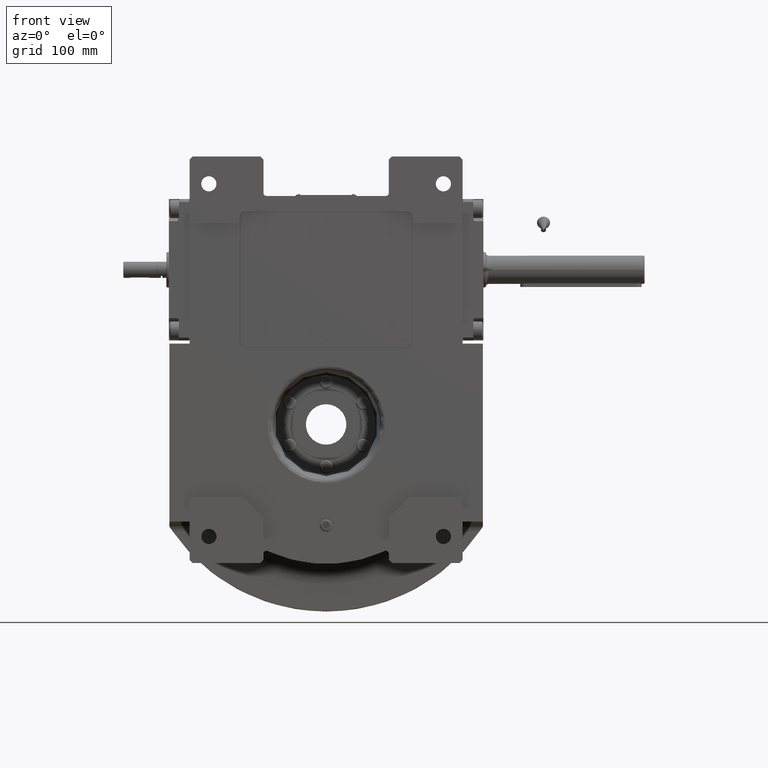
[diagram: clean part render]
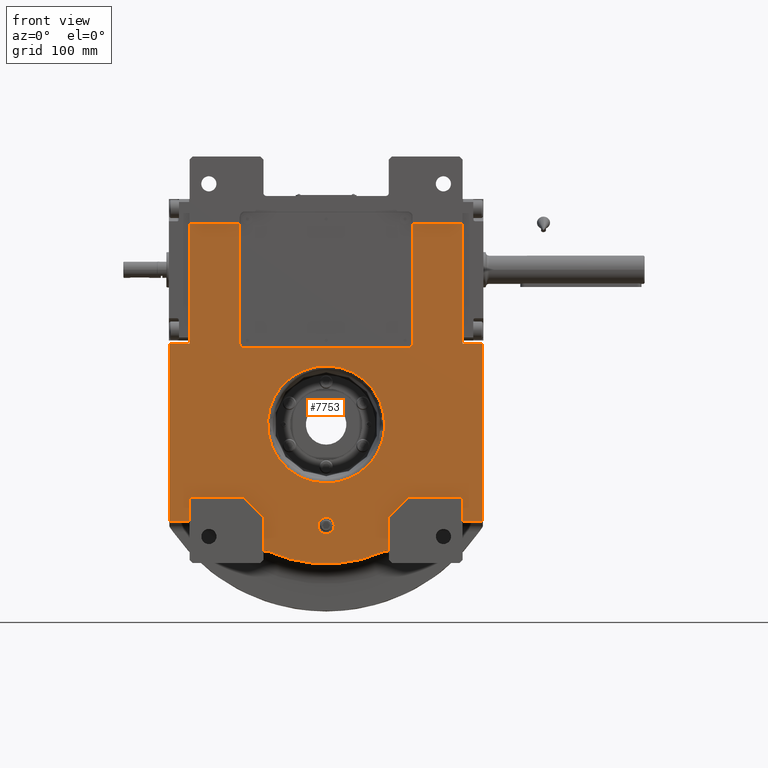
[diagram: same view with one face highlighted and labeled with its STEP entity id]
A machine part, front view. The second image highlights one B-rep face of the part: STEP entity #7753.
In plain terms, the highlighted planar face has unit normal (0, 1, 0).
Its self-contained STEP definition (entity closure, byte-faithful):
#246 = ORIENTED_EDGE ( 'NONE', *, *, #20684, .F. ) ;
#286 = EDGE_CURVE ( 'NONE', #18833, #51886, #25928, .T. ) ;
#842 = LINE ( 'NONE', #16891, #64891 ) ;
#1311 = VERTEX_POINT ( 'NONE', #29010 ) ;
#1439 = ORIENTED_EDGE ( 'NONE', *, *, #52602, .T. ) ;
#2546 = CARTESIAN_POINT ( 'NONE',  ( -57.74468085106390447, -73.00000000000000000, -125.3377510306004012 ) ) ;
#2707 = CARTESIAN_POINT ( 'NONE',  ( -1.115322681495329805E-12, -73.00000000000000000, 57.88848986029439914 ) ) ;
#2893 = VERTEX_POINT ( 'NONE', #63094 ) ;
#2996 = DIRECTION ( 'NONE',  ( 0.000000000000000000, 0.000000000000000000, 1.000000000000000000 ) ) ;
#4444 = CARTESIAN_POINT ( 'NONE',  ( 82.00000000000000000, -73.00000000000000000, -72.00000000000000000 ) ) ;
#4532 = ORIENTED_EDGE ( 'NONE', *, *, #40437, .F. ) ;
#5081 = EDGE_CURVE ( 'NONE', #36520, #30972, #8352, .T. ) ;
#5107 = VECTOR ( 'NONE', #14465, 1000.000000000000000 ) ;
#5372 = VERTEX_POINT ( 'NONE', #39701 ) ;
#6046 = ORIENTED_EDGE ( 'NONE', *, *, #34114, .F. ) ;
#6074 = VERTEX_POINT ( 'NONE', #61891 ) ;
#6201 = CARTESIAN_POINT ( 'NONE',  ( -82.00000000000000000, -73.00000000000000000, -72.00000000000000000 ) ) ;
#6512 = EDGE_CURVE ( 'NONE', #40544, #42621, #43103, .T. ) ;
#6593 = VERTEX_POINT ( 'NONE', #2546 ) ;
#6621 = FACE_BOUND ( 'NONE', #21078, .T. ) ;
#6630 = LINE ( 'NONE', #61538, #66008 ) ;
#6703 = CARTESIAN_POINT ( 'NONE',  ( 1.116299612869330063E-12, -73.00000000000000000, -57.88848986029439914 ) ) ;
#6928 = DIRECTION ( 'NONE',  ( -0.7071067811865474617, 0.000000000000000000, 0.7071067811865474617 ) ) ;
#7632 = EDGE_CURVE ( 'NONE', #29469, #9373, #31183, .T. ) ;
#7753 = ADVANCED_FACE ( 'NONE', ( #35031, #6621, #44054 ), #60800, .F. ) ;
#8352 = LINE ( 'NONE', #4444, #70245 ) ;
#8610 = DIRECTION ( 'NONE',  ( 0.000000000000000000, -1.000000000000000000, 0.000000000000000000 ) ) ;
#8616 = CARTESIAN_POINT ( 'NONE',  ( -135.0000000000000000, -73.00000000000000000, 199.0000000000000000 ) ) ;
#8634 = DIRECTION ( 'NONE',  ( 0.000000000000000000, 1.000000000000000000, 0.000000000000000000 ) ) ;
#9354 = ORIENTED_EDGE ( 'NONE', *, *, #60687, .T. ) ;
#9373 = VERTEX_POINT ( 'NONE', #20105 ) ;
#9719 = LINE ( 'NONE', #20445, #30412 ) ;
#9909 = VERTEX_POINT ( 'NONE', #34525 ) ;
#10088 = CIRCLE ( 'NONE', #22595, 3.000000000000012879 ) ;
#10339 = CARTESIAN_POINT ( 'NONE',  ( -135.0000000000000000, -73.00000000000000000, 199.0000000000000000 ) ) ;
#10789 = EDGE_LOOP ( 'NONE', ( #9354, #18609 ) ) ;
#10833 = CARTESIAN_POINT ( 'NONE',  ( 135.0000000000000000, -73.00000000000000000, 80.00000000000000000 ) ) ;
#11454 = CARTESIAN_POINT ( 'NONE',  ( -8.000000000000000000, -73.00000000000000000, -100.0000000000000000 ) ) ;
#12043 = DIRECTION ( 'NONE',  ( -1.000000000000000000, 0.000000000000000000, -2.775557561562888984E-15 ) ) ;
#12131 = ORIENTED_EDGE ( 'NONE', *, *, #6512, .F. ) ;
#12672 = CARTESIAN_POINT ( 'NONE',  ( -85.50000000000000000, -73.00000000000000000, 199.0000000000000000 ) ) ;
#12684 = CARTESIAN_POINT ( 'NONE',  ( -1.115322681495329805E-12, -73.00000000000000000, 57.88848986029439914 ) ) ;
#13078 = CARTESIAN_POINT ( 'NONE',  ( 1.116299612869330063E-12, -73.00000000000000000, -57.88848986029439914 ) ) ;
#13094 = DIRECTION ( 'NONE',  ( 1.000000000000000000, 0.000000000000000000, 0.000000000000000000 ) ) ;
#13112 = CARTESIAN_POINT ( 'NONE',  ( 135.0000000000000000, -73.00000000000000000, -96.00000000000000000 ) ) ;
#13563 = EDGE_CURVE ( 'NONE', #1311, #2893, #43453, .T. ) ;
#13908 = CARTESIAN_POINT ( 'NONE',  ( 135.0000000000000000, -73.00000000000000000, -96.00000000000000000 ) ) ;
#14152 = EDGE_CURVE ( 'NONE', #48346, #15816, #57120, .T. ) ;
#14309 = VERTEX_POINT ( 'NONE', #16089 ) ;
#14310 = CARTESIAN_POINT ( 'NONE',  ( 0.000000000000000000, -73.00000000000000000, -100.0000000000000000 ) ) ;
#14425 = VERTEX_POINT ( 'NONE', #54628 ) ;
#14465 = DIRECTION ( 'NONE',  ( 1.000000000000000000, 0.000000000000000000, 0.000000000000000000 ) ) ;
#14546 = VECTOR ( 'NONE', #13094, 1000.000000000000000 ) ;
#14776 = CARTESIAN_POINT ( 'NONE',  ( 155.0000000000000000, -73.00000000000000000, -96.00000000000000000 ) ) ;
#15319 = ORIENTED_EDGE ( 'NONE', *, *, #51581, .F. ) ;
#15406 = VECTOR ( 'NONE', #6928, 1000.000000000000114 ) ;
#15694 = LINE ( 'NONE', #49214, #32474 ) ;
#15753 = CIRCLE ( 'NONE', #55631, 5.000000000000004441 ) ;
#15816 = VERTEX_POINT ( 'NONE', #12672 ) ;
#16089 = CARTESIAN_POINT ( 'NONE',  ( -62.00000000000000000, -73.00000000000000000, -92.00000000000000000 ) ) ;
#16540 = CARTESIAN_POINT ( 'NONE',  ( -135.0000000000000000, -73.00000000000000000, -96.00000000000000000 ) ) ;
#16714 = EDGE_LOOP ( 'NONE', ( #32273, #29571, #246, #27921, #68535, #56163, #68153, #40009, #4532, #60766, #35424, #23782, #1439, #46313, #26250, #55831, #41216, #68100, #42983, #15319, #64793, #58255, #38340, #17097, #36257, #6046 ) ) ;
#16891 = CARTESIAN_POINT ( 'NONE',  ( -62.00000000000000000, -73.00000000000000000, -128.0624847486569990 ) ) ;
#17092 = DIRECTION ( 'NONE',  ( 0.000000000000000000, 0.000000000000000000, 1.000000000000000000 ) ) ;
#17097 = ORIENTED_EDGE ( 'NONE', *, *, #53402, .F. ) ;
#17105 = VECTOR ( 'NONE', #21622, 1000.000000000000000 ) ;
#17639 = LINE ( 'NONE', #28741, #17105 ) ;
#18329 = EDGE_CURVE ( 'NONE', #6593, #43570, #40374, .T. ) ;
#18421 = CARTESIAN_POINT ( 'NONE',  ( -115.7767661625582463, -73.00000000000000000, 57.88834748044401834 ) ) ;
#18609 = ORIENTED_EDGE ( 'NONE', *, *, #7632, .T. ) ;
#18625 = CARTESIAN_POINT ( 'NONE',  ( 135.0000000000000000, -73.00000000000000000, 199.0000000000000000 ) ) ;
#18833 = VERTEX_POINT ( 'NONE', #22238 ) ;
#18907 = LINE ( 'NONE', #40669, #49311 ) ;
#19880 = DIRECTION ( 'NONE',  ( 0.000000000000000000, -1.000000000000000000, 0.000000000000000000 ) ) ;
#20021 = CARTESIAN_POINT ( 'NONE',  ( -135.0000000000000000, -73.00000000000000000, -96.00000000000000000 ) ) ;
#20105 = CARTESIAN_POINT ( 'NONE',  ( 1.116299612869330063E-12, -73.00000000000000000, -57.88848986029439914 ) ) ;
#20106 = DIRECTION ( 'NONE',  ( -0.7071067811865474617, 0.000000000000000000, -0.7071067811865474617 ) ) ;
#20445 = CARTESIAN_POINT ( 'NONE',  ( -85.50000000000000000, -73.00000000000000000, 199.0000000000000000 ) ) ;
#20684 = EDGE_CURVE ( 'NONE', #15816, #18833, #9719, .T. ) ;
#21078 = EDGE_LOOP ( 'NONE', ( #56928, #12131 ) ) ;
#21336 = CARTESIAN_POINT ( 'NONE',  ( -155.0000000000000000, -73.00000000000000000, -96.00000000000000000 ) ) ;
#21586 = VECTOR ( 'NONE', #56457, 1000.000000000000000 ) ;
#21622 = DIRECTION ( 'NONE',  ( 0.000000000000000000, 0.000000000000000000, -1.000000000000000000 ) ) ;
#21736 = DIRECTION ( 'NONE',  ( 1.000000000000000000, 0.000000000000000000, -1.734723475976807094E-15 ) ) ;
#22074 = VECTOR ( 'NONE', #45302, 1000.000000000000000 ) ;
#22238 = CARTESIAN_POINT ( 'NONE',  ( -85.50000000000000000, -73.00000000000000000, 80.50000000000000000 ) ) ;
#22595 = AXIS2_PLACEMENT_3D ( 'NONE', #25379, #8634, #47131 ) ;
#22918 = DIRECTION ( 'NONE',  ( -1.000000000000000000, -4.625929269271481378E-15, -9.251858538542962756E-15 ) ) ;
#23355 = DIRECTION ( 'NONE',  ( -1.000000000000000000, 0.000000000000000000, 0.000000000000000000 ) ) ;
#23429 = LINE ( 'NONE', #35222, #37925 ) ;
#23782 = ORIENTED_EDGE ( 'NONE', *, *, #64201, .F. ) ;
#24131 = CARTESIAN_POINT ( 'NONE',  ( -115.7767661625559867, -73.00000000000000000, -57.88822476622628699 ) ) ;
#24897 = DIRECTION ( 'NONE',  ( -0.4184397163120575636, 0.000000000000000000, -0.9082445726855100654 ) ) ;
#25379 = CARTESIAN_POINT ( 'NONE',  ( 59.00000000000000000, -73.00000000000000000, -128.0624847486569990 ) ) ;
#25459 = EDGE_CURVE ( 'NONE', #30972, #65811, #17639, .T. ) ;
#25513 = LINE ( 'NONE', #67626, #5107 ) ;
#25738 = CARTESIAN_POINT ( 'NONE',  ( -155.0000000000000000, -73.00000000000000000, 80.00000000000000000 ) ) ;
#25928 = CIRCLE ( 'NONE', #68097, 5.000000000000004441 ) ;
#26250 = ORIENTED_EDGE ( 'NONE', *, *, #53975, .T. ) ;
#26323 = EDGE_CURVE ( 'NONE', #2893, #61759, #31832, .T. ) ;
#26925 = AXIS2_PLACEMENT_3D ( 'NONE', #38381, #65841, #28383 ) ;
#27448 = DIRECTION ( 'NONE',  ( 0.000000000000000000, -1.000000000000000000, 0.000000000000000000 ) ) ;
#27471 = CIRCLE ( 'NONE', #53645, 8.000000000000000000 ) ;
#27734 = LINE ( 'NONE', #65205, #39395 ) ;
#27921 = ORIENTED_EDGE ( 'NONE', *, *, #14152, .F. ) ;
#28383 = DIRECTION ( 'NONE',  ( 1.000000000000000000, 0.000000000000000000, 0.000000000000000000 ) ) ;
#28423 = CARTESIAN_POINT ( 'NONE',  ( 82.00000000000000000, -73.00000000000000000, -72.00000000000000000 ) ) ;
#28491 = DIRECTION ( 'NONE',  ( 0.000000000000000000, -1.000000000000000000, 0.000000000000000000 ) ) ;
#28741 = CARTESIAN_POINT ( 'NONE',  ( 62.00000000000000000, -73.00000000000000000, -92.00000000000000000 ) ) ;
#29010 = CARTESIAN_POINT ( 'NONE',  ( -155.0000000000000000, -73.00000000000000000, -96.00000000000000000 ) ) ;
#29084 = VECTOR ( 'NONE', #29193, 1000.000000000000000 ) ;
#29193 = DIRECTION ( 'NONE',  ( 0.000000000000000000, 0.000000000000000000, 1.000000000000000000 ) ) ;
#29469 = VERTEX_POINT ( 'NONE', #12684 ) ;
#29571 = ORIENTED_EDGE ( 'NONE', *, *, #286, .F. ) ;
#30258 = CARTESIAN_POINT ( 'NONE',  ( 62.00000000000000000, -73.00000000000000000, -92.00000000000000000 ) ) ;
#30412 = VECTOR ( 'NONE', #68261, 1000.000000000000000 ) ;
#30635 = EDGE_CURVE ( 'NONE', #6074, #69306, #15694, .T. ) ;
#30923 = CARTESIAN_POINT ( 'NONE',  ( -1.115322681495329805E-12, -73.00000000000000000, 57.88848986029439914 ) ) ;
#30972 = VERTEX_POINT ( 'NONE', #30258 ) ;
#31183 =( BOUNDED_CURVE ( )  B_SPLINE_CURVE ( 3, ( #30923, #67316, #40185, #13078 ),
 .UNSPECIFIED., .F., .T. ) 
 B_SPLINE_CURVE_WITH_KNOTS ( ( 4, 4 ),
 ( 4.559169057132199221, 7.700758191236885430 ),
 .UNSPECIFIED. ) 
 CURVE ( )  GEOMETRIC_REPRESENTATION_ITEM ( )  RATIONAL_B_SPLINE_CURVE ( ( 1.000000000000000000, 0.3333345064950357095, 0.3333345064950357095, 1.000000000000000000 ) ) 
 REPRESENTATION_ITEM ( '' )  );
#31541 = CARTESIAN_POINT ( 'NONE',  ( 80.50000000000000000, -73.00000000000000000, 80.50000000000000000 ) ) ;
#31832 = LINE ( 'NONE', #25738, #53644 ) ;
#32273 = ORIENTED_EDGE ( 'NONE', *, *, #39650, .F. ) ;
#32474 = VECTOR ( 'NONE', #17092, 1000.000000000000000 ) ;
#33066 = VECTOR ( 'NONE', #67149, 1000.000000000000000 ) ;
#33430 = DIRECTION ( 'NONE',  ( -1.000000000000000000, 0.000000000000000000, 0.000000000000000000 ) ) ;
#33850 = EDGE_CURVE ( 'NONE', #61759, #48346, #40464, .T. ) ;
#34060 = VERTEX_POINT ( 'NONE', #14776 ) ;
#34114 = EDGE_CURVE ( 'NONE', #50905, #6074, #15753, .T. ) ;
#34500 = DIRECTION ( 'NONE',  ( 1.000000000000000000, 0.000000000000000000, 0.000000000000000000 ) ) ;
#34525 = CARTESIAN_POINT ( 'NONE',  ( 155.0000000000000000, -73.00000000000000000, 80.00000000000000000 ) ) ;
#34609 = CARTESIAN_POINT ( 'NONE',  ( -135.0000000000000000, -73.00000000000000000, -72.00000000000000000 ) ) ;
#35031 = FACE_BOUND ( 'NONE', #10789, .T. ) ;
#35094 = CARTESIAN_POINT ( 'NONE',  ( 80.50000000000000000, -73.00000000000000000, 75.50000000000000000 ) ) ;
#35222 = CARTESIAN_POINT ( 'NONE',  ( 135.0000000000000000, -73.00000000000000000, 80.00000000000000000 ) ) ;
#35424 = ORIENTED_EDGE ( 'NONE', *, *, #41867, .F. ) ;
#35602 = VECTOR ( 'NONE', #55785, 1000.000000000000000 ) ;
#35755 =( BOUNDED_CURVE ( )  B_SPLINE_CURVE ( 3, ( #6703, #24131, #18421, #2707 ),
 .UNSPECIFIED., .F., .F. ) 
 B_SPLINE_CURVE_WITH_KNOTS ( ( 4, 4 ),
 ( 1.417576403733056045, 4.559165537837738036 ),
 .UNSPECIFIED. ) 
 CURVE ( )  GEOMETRIC_REPRESENTATION_ITEM ( )  RATIONAL_B_SPLINE_CURVE ( ( 1.000000000000000000, 0.3333345064950371528, 0.3333345064950371528, 1.000000000000000000 ) ) 
 REPRESENTATION_ITEM ( '' )  );
#36150 = CARTESIAN_POINT ( 'NONE',  ( -62.00000000000000000, -73.00000000000000000, -128.0624847486569990 ) ) ;
#36257 = ORIENTED_EDGE ( 'NONE', *, *, #30635, .F. ) ;
#36520 = VERTEX_POINT ( 'NONE', #28423 ) ;
#37018 = EDGE_CURVE ( 'NONE', #63266, #1311, #55071, .T. ) ;
#37767 = EDGE_CURVE ( 'NONE', #60313, #5372, #43067, .T. ) ;
#37925 = VECTOR ( 'NONE', #34500, 1000.000000000000000 ) ;
#38340 = ORIENTED_EDGE ( 'NONE', *, *, #64333, .F. ) ;
#38381 = CARTESIAN_POINT ( 'NONE',  ( 0.000000000000000000, -73.00000000000000000, 0.000000000000000000 ) ) ;
#39106 = VECTOR ( 'NONE', #69822, 1000.000000000000000 ) ;
#39323 = DIRECTION ( 'NONE',  ( -4.736951571734100373E-15, 1.000000000000000000, 8.657947283301611559E-15 ) ) ;
#39395 = VECTOR ( 'NONE', #33430, 1000.000000000000000 ) ;
#39650 = EDGE_CURVE ( 'NONE', #51886, #50905, #25513, .T. ) ;
#39701 = CARTESIAN_POINT ( 'NONE',  ( -135.0000000000000000, -73.00000000000000000, -72.00000000000000000 ) ) ;
#40009 = ORIENTED_EDGE ( 'NONE', *, *, #37018, .F. ) ;
#40185 = CARTESIAN_POINT ( 'NONE',  ( 115.7767661625584452, -73.00000000000000000, -57.88834748044417466 ) ) ;
#40374 = CIRCLE ( 'NONE', #51804, 138.0000000000000000 ) ;
#40437 = EDGE_CURVE ( 'NONE', #5372, #63266, #43224, .T. ) ;
#40464 = LINE ( 'NONE', #56529, #65876 ) ;
#40544 = VERTEX_POINT ( 'NONE', #11454 ) ;
#40669 = CARTESIAN_POINT ( 'NONE',  ( 155.0000000000000000, -73.00000000000000000, 80.00000000000000000 ) ) ;
#41105 = LINE ( 'NONE', #50764, #15406 ) ;
#41216 = ORIENTED_EDGE ( 'NONE', *, *, #5081, .F. ) ;
#41511 = DIRECTION ( 'NONE',  ( 0.000000000000000000, -1.000000000000000000, 0.000000000000000000 ) ) ;
#41867 = EDGE_CURVE ( 'NONE', #14309, #60313, #41105, .T. ) ;
#42396 = CARTESIAN_POINT ( 'NONE',  ( -135.0000000000000000, -73.00000000000000000, 80.00000000000000000 ) ) ;
#42621 = VERTEX_POINT ( 'NONE', #45847 ) ;
#42983 = ORIENTED_EDGE ( 'NONE', *, *, #48710, .F. ) ;
#43067 = LINE ( 'NONE', #65187, #39106 ) ;
#43103 = CIRCLE ( 'NONE', #65926, 8.000000000000000000 ) ;
#43224 = LINE ( 'NONE', #34609, #22074 ) ;
#43453 = LINE ( 'NONE', #21336, #55713 ) ;
#43570 = VERTEX_POINT ( 'NONE', #50690 ) ;
#44054 = FACE_OUTER_BOUND ( 'NONE', #16714, .T. ) ;
#44528 = CARTESIAN_POINT ( 'NONE',  ( 0.000000000000000000, -73.00000000000000000, -100.0000000000000000 ) ) ;
#45302 = DIRECTION ( 'NONE',  ( 0.000000000000000000, 0.000000000000000000, -1.000000000000000000 ) ) ;
#45847 = CARTESIAN_POINT ( 'NONE',  ( 8.000000000000000000, -73.00000000000000000, -100.0000000000000000 ) ) ;
#46313 = ORIENTED_EDGE ( 'NONE', *, *, #18329, .T. ) ;
#46929 = CARTESIAN_POINT ( 'NONE',  ( -80.50000000000000000, -73.00000000000000000, 75.50000000000000000 ) ) ;
#47131 = DIRECTION ( 'NONE',  ( -0.4184397163120606722, 0.000000000000000000, 0.9082445726855087331 ) ) ;
#47145 = VERTEX_POINT ( 'NONE', #13908 ) ;
#47493 = DIRECTION ( 'NONE',  ( 1.000000000000000000, 0.000000000000000000, 0.000000000000000000 ) ) ;
#48346 = VERTEX_POINT ( 'NONE', #10339 ) ;
#48601 = EDGE_CURVE ( 'NONE', #42621, #40544, #27471, .T. ) ;
#48710 = EDGE_CURVE ( 'NONE', #47145, #50375, #62332, .T. ) ;
#49214 = CARTESIAN_POINT ( 'NONE',  ( 85.50000000000000000, -73.00000000000000000, 80.50000000000000000 ) ) ;
#49311 = VECTOR ( 'NONE', #62443, 1000.000000000000000 ) ;
#50375 = VERTEX_POINT ( 'NONE', #60854 ) ;
#50690 = CARTESIAN_POINT ( 'NONE',  ( 57.74468085106380499, -73.00000000000000000, -125.3377510306004012 ) ) ;
#50764 = CARTESIAN_POINT ( 'NONE',  ( -62.00000000000000000, -73.00000000000000000, -92.00000000000000000 ) ) ;
#50905 = VERTEX_POINT ( 'NONE', #35094 ) ;
#50939 = VERTEX_POINT ( 'NONE', #36150 ) ;
#51581 = EDGE_CURVE ( 'NONE', #34060, #47145, #27734, .T. ) ;
#51804 = AXIS2_PLACEMENT_3D ( 'NONE', #68772, #19880, #24897 ) ;
#51886 = VERTEX_POINT ( 'NONE', #46929 ) ;
#52602 = EDGE_CURVE ( 'NONE', #50939, #6593, #63492, .T. ) ;
#53402 = EDGE_CURVE ( 'NONE', #69306, #14425, #67330, .T. ) ;
#53644 = VECTOR ( 'NONE', #47493, 1000.000000000000000 ) ;
#53645 = AXIS2_PLACEMENT_3D ( 'NONE', #44528, #27448, #21736 ) ;
#53975 = EDGE_CURVE ( 'NONE', #43570, #65811, #10088, .T. ) ;
#54628 = CARTESIAN_POINT ( 'NONE',  ( 135.0000000000000000, -73.00000000000000000, 199.0000000000000000 ) ) ;
#55071 = LINE ( 'NONE', #16540, #35602 ) ;
#55216 = CARTESIAN_POINT ( 'NONE',  ( 85.50000000000000000, -73.00000000000000000, 199.0000000000000000 ) ) ;
#55492 = AXIS2_PLACEMENT_3D ( 'NONE', #66435, #39323, #22918 ) ;
#55631 = AXIS2_PLACEMENT_3D ( 'NONE', #31541, #41511, #57923 ) ;
#55713 = VECTOR ( 'NONE', #66872, 1000.000000000000000 ) ;
#55785 = DIRECTION ( 'NONE',  ( -1.000000000000000000, 0.000000000000000000, 0.000000000000000000 ) ) ;
#55831 = ORIENTED_EDGE ( 'NONE', *, *, #25459, .F. ) ;
#56163 = ORIENTED_EDGE ( 'NONE', *, *, #26323, .F. ) ;
#56457 = DIRECTION ( 'NONE',  ( 0.000000000000000000, 0.000000000000000000, -1.000000000000000000 ) ) ;
#56529 = CARTESIAN_POINT ( 'NONE',  ( -135.0000000000000000, -73.00000000000000000, 80.00000000000000000 ) ) ;
#56928 = ORIENTED_EDGE ( 'NONE', *, *, #48601, .F. ) ;
#57120 = LINE ( 'NONE', #8616, #33066 ) ;
#57740 = CARTESIAN_POINT ( 'NONE',  ( 62.00000000000000000, -73.00000000000000000, -128.0624847486569990 ) ) ;
#57923 = DIRECTION ( 'NONE',  ( -8.326672684688666165E-15, 0.000000000000000000, -1.000000000000000000 ) ) ;
#58255 = ORIENTED_EDGE ( 'NONE', *, *, #60726, .F. ) ;
#59867 = CARTESIAN_POINT ( 'NONE',  ( -80.50000000000000000, -73.00000000000000000, 80.50000000000000000 ) ) ;
#60313 = VERTEX_POINT ( 'NONE', #6201 ) ;
#60687 = EDGE_CURVE ( 'NONE', #9373, #29469, #35755, .T. ) ;
#60726 = EDGE_CURVE ( 'NONE', #66775, #9909, #23429, .T. ) ;
#60766 = ORIENTED_EDGE ( 'NONE', *, *, #37767, .F. ) ;
#60800 = PLANE ( 'NONE',  #26925 ) ;
#60854 = CARTESIAN_POINT ( 'NONE',  ( 135.0000000000000000, -73.00000000000000000, -72.00000000000000000 ) ) ;
#61538 = CARTESIAN_POINT ( 'NONE',  ( 135.0000000000000000, -73.00000000000000000, -72.00000000000000000 ) ) ;
#61759 = VERTEX_POINT ( 'NONE', #42396 ) ;
#61891 = CARTESIAN_POINT ( 'NONE',  ( 85.50000000000000000, -73.00000000000000000, 80.50000000000000000 ) ) ;
#62167 = CARTESIAN_POINT ( 'NONE',  ( 85.50000000000000000, -73.00000000000000000, 199.0000000000000000 ) ) ;
#62332 = LINE ( 'NONE', #13112, #29084 ) ;
#62443 = DIRECTION ( 'NONE',  ( 3.229739708000455480E-16, 0.000000000000000000, -1.000000000000000000 ) ) ;
#62613 = EDGE_CURVE ( 'NONE', #50375, #36520, #6630, .T. ) ;
#63094 = CARTESIAN_POINT ( 'NONE',  ( -155.0000000000000000, -73.00000000000000000, 80.00000000000000000 ) ) ;
#63266 = VERTEX_POINT ( 'NONE', #20021 ) ;
#63492 = CIRCLE ( 'NONE', #55492, 3.000000000000002665 ) ;
#64201 = EDGE_CURVE ( 'NONE', #50939, #14309, #842, .T. ) ;
#64333 = EDGE_CURVE ( 'NONE', #14425, #66775, #67509, .T. ) ;
#64793 = ORIENTED_EDGE ( 'NONE', *, *, #69937, .F. ) ;
#64891 = VECTOR ( 'NONE', #70065, 1000.000000000000000 ) ;
#65187 = CARTESIAN_POINT ( 'NONE',  ( -82.00000000000000000, -73.00000000000000000, -72.00000000000000000 ) ) ;
#65205 = CARTESIAN_POINT ( 'NONE',  ( 155.0000000000000000, -73.00000000000000000, -96.00000000000000000 ) ) ;
#65811 = VERTEX_POINT ( 'NONE', #57740 ) ;
#65841 = DIRECTION ( 'NONE',  ( -0.000000000000000000, 1.000000000000000000, 0.000000000000000000 ) ) ;
#65876 = VECTOR ( 'NONE', #2996, 1000.000000000000000 ) ;
#65926 = AXIS2_PLACEMENT_3D ( 'NONE', #14310, #8610, #67830 ) ;
#66008 = VECTOR ( 'NONE', #23355, 1000.000000000000000 ) ;
#66435 = CARTESIAN_POINT ( 'NONE',  ( -59.00000000000000000, -73.00000000000000000, -128.0624847486569990 ) ) ;
#66775 = VERTEX_POINT ( 'NONE', #10833 ) ;
#66872 = DIRECTION ( 'NONE',  ( 0.000000000000000000, 0.000000000000000000, 1.000000000000000000 ) ) ;
#67149 = DIRECTION ( 'NONE',  ( 1.000000000000000000, 0.000000000000000000, 0.000000000000000000 ) ) ;
#67316 = CARTESIAN_POINT ( 'NONE',  ( 115.7767661625561999, -73.00000000000000000, 57.88822476622656410 ) ) ;
#67330 = LINE ( 'NONE', #55216, #14546 ) ;
#67509 = LINE ( 'NONE', #18625, #21586 ) ;
#67626 = CARTESIAN_POINT ( 'NONE',  ( -80.50000000000000000, -73.00000000000000000, 75.50000000000000000 ) ) ;
#67830 = DIRECTION ( 'NONE',  ( -1.000000000000000000, 0.000000000000000000, 1.734723475976807094E-15 ) ) ;
#68097 = AXIS2_PLACEMENT_3D ( 'NONE', #59867, #28491, #12043 ) ;
#68100 = ORIENTED_EDGE ( 'NONE', *, *, #62613, .F. ) ;
#68153 = ORIENTED_EDGE ( 'NONE', *, *, #13563, .F. ) ;
#68261 = DIRECTION ( 'NONE',  ( 0.000000000000000000, 0.000000000000000000, -1.000000000000000000 ) ) ;
#68535 = ORIENTED_EDGE ( 'NONE', *, *, #33850, .F. ) ;
#68772 = CARTESIAN_POINT ( 'NONE',  ( 0.000000000000000000, -73.00000000000000000, -1.705302565824239941E-13 ) ) ;
#69306 = VERTEX_POINT ( 'NONE', #62167 ) ;
#69822 = DIRECTION ( 'NONE',  ( -1.000000000000000000, 0.000000000000000000, 0.000000000000000000 ) ) ;
#69937 = EDGE_CURVE ( 'NONE', #9909, #34060, #18907, .T. ) ;
#70065 = DIRECTION ( 'NONE',  ( 0.000000000000000000, 0.000000000000000000, 1.000000000000000000 ) ) ;
#70245 = VECTOR ( 'NONE', #20106, 1000.000000000000114 ) ;